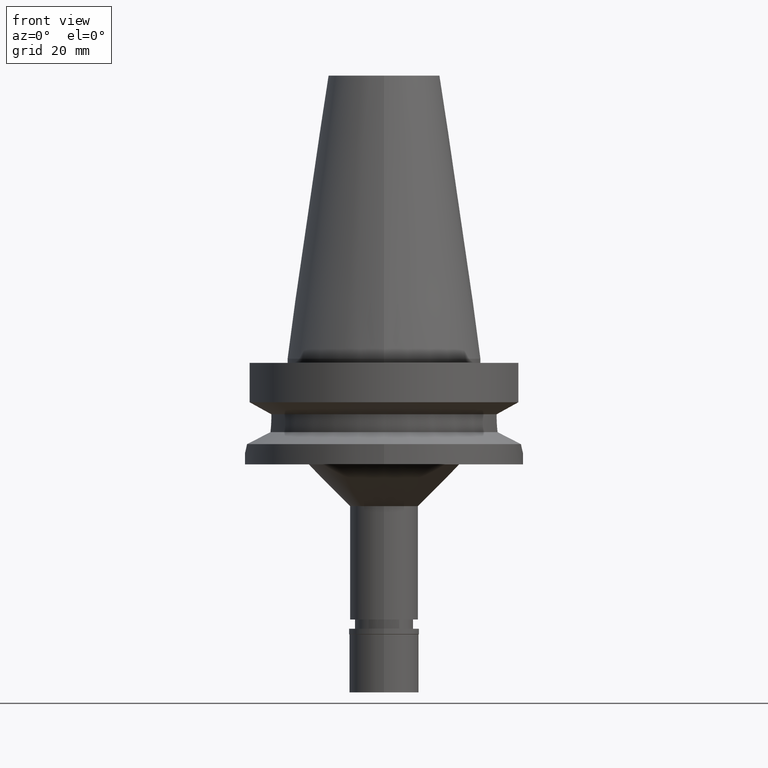
[diagram: clean part render]
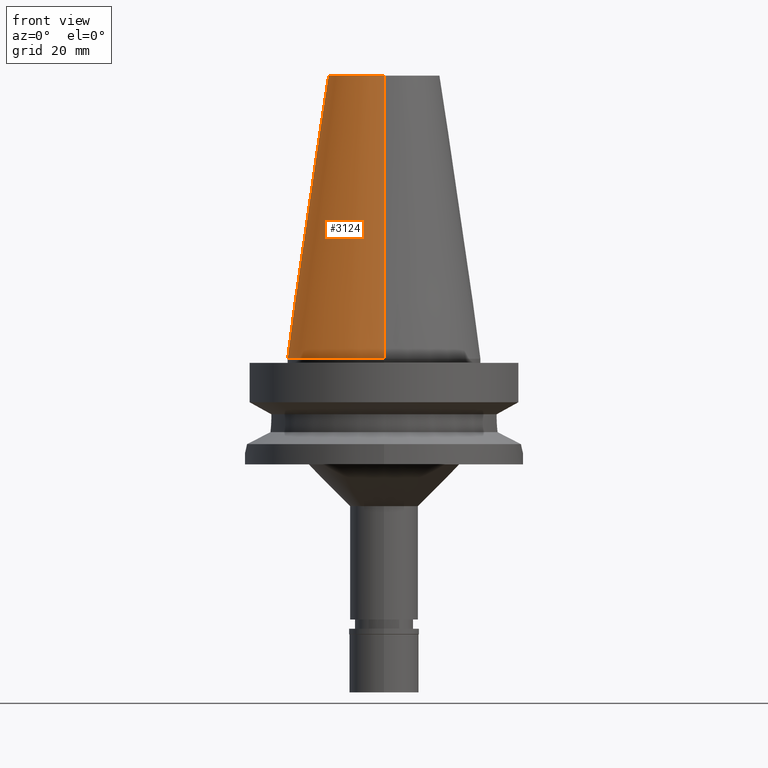
[diagram: same view with one face highlighted and labeled with its STEP entity id]
A machine part, front view. The second image highlights one B-rep face of the part: STEP entity #3124.
In plain terms, the highlighted conical surface has half-angle 8.297 deg.
Its self-contained STEP definition (entity closure, byte-faithful):
#9 = DIRECTION ( 'NONE',  ( 0.0000000000000000000, 0.0000000000000000000, -1.000000000000000000 ) ) ;
#23 = DIRECTION ( 'NONE',  ( 0.0000000000000000000, -1.000000000000000000, 0.0000000000000000000 ) ) ;
#119 = CONICAL_SURFACE ( 'NONE', #2867, 27.50221485948000222, 0.1448099680379422438 ) ;
#265 = CARTESIAN_POINT ( 'NONE',  ( 0.0000000000000000000, -34.92499999999999716, 4.476419235289000232E-13 ) ) ;
#277 = EDGE_CURVE ( 'NONE', #2784, #2004, #2087, .T. ) ;
#286 = DIRECTION ( 'NONE',  ( 0.0000000000000000000, -1.000000000000000000, 0.0000000000000000000 ) ) ;
#306 = CARTESIAN_POINT ( 'NONE',  ( 0.0000000000000000000, 1.847992019912999597E-14, 3.979039320256999774E-13 ) ) ;
#445 = DIRECTION ( 'NONE',  ( 0.0000000000000000000, 0.0000000000000000000, -1.000000000000000000 ) ) ;
#512 = DIRECTION ( 'NONE',  ( 0.0000000000000000000, -1.000000000000000000, 0.0000000000000000000 ) ) ;
#645 = CARTESIAN_POINT ( 'NONE',  ( 0.0000000000000000000, -20.07942971896000017, 101.7999999999999972 ) ) ;
#688 = VECTOR ( 'NONE', #1752, 1000.000000000000114 ) ;
#746 = CIRCLE ( 'NONE', #1349, 34.92499999999999716 ) ;
#795 = ORIENTED_EDGE ( 'NONE', *, *, #1576, .F. ) ;
#931 = EDGE_CURVE ( 'NONE', #2784, #1736, #1451, .T. ) ;
#936 = FACE_OUTER_BOUND ( 'NONE', #2428, .T. ) ;
#1246 = CARTESIAN_POINT ( 'NONE',  ( 0.0000000000000000000, 1.847992019912999597E-14, 50.89999999999999858 ) ) ;
#1303 = CARTESIAN_POINT ( 'NONE',  ( 0.0000000000000000000, 20.07942971896000017, 101.7999999999999972 ) ) ;
#1349 = AXIS2_PLACEMENT_3D ( 'NONE', #306, #445, #286 ) ;
#1410 = CARTESIAN_POINT ( 'NONE',  ( 0.0000000000000000000, 34.92499999999999716, 4.476419235289000232E-13 ) ) ;
#1451 = CIRCLE ( 'NONE', #3060, 20.07942971896000017 ) ;
#1496 = CARTESIAN_POINT ( 'NONE',  ( 0.0000000000000000000, 1.847992019912999597E-14, 101.7999999999999972 ) ) ;
#1576 = EDGE_CURVE ( 'NONE', #2004, #1877, #746, .T. ) ;
#1623 = DIRECTION ( 'NONE',  ( 0.0000000000000000000, -0.1443043893538948075, -0.9895333461855641000 ) ) ;
#1736 = VERTEX_POINT ( 'NONE', #1303 ) ;
#1752 = DIRECTION ( 'NONE',  ( 0.0000000000000000000, 0.1443043893538948075, -0.9895333461855641000 ) ) ;
#1877 = VERTEX_POINT ( 'NONE', #1410 ) ;
#2004 = VERTEX_POINT ( 'NONE', #265 ) ;
#2087 = LINE ( 'NONE', #645, #2209 ) ;
#2209 = VECTOR ( 'NONE', #1623, 1000.000000000000114 ) ;
#2428 = EDGE_LOOP ( 'NONE', ( #795, #2596, #2627, #2949 ) ) ;
#2441 = CARTESIAN_POINT ( 'NONE',  ( 0.0000000000000000000, 20.07942971896000017, 101.7999999999999972 ) ) ;
#2586 = EDGE_CURVE ( 'NONE', #1736, #1877, #3129, .T. ) ;
#2596 = ORIENTED_EDGE ( 'NONE', *, *, #277, .F. ) ;
#2627 = ORIENTED_EDGE ( 'NONE', *, *, #931, .T. ) ;
#2656 = DIRECTION ( 'NONE',  ( 0.0000000000000000000, 0.0000000000000000000, -1.000000000000000000 ) ) ;
#2784 = VERTEX_POINT ( 'NONE', #3020 ) ;
#2867 = AXIS2_PLACEMENT_3D ( 'NONE', #1246, #2656, #512 ) ;
#2949 = ORIENTED_EDGE ( 'NONE', *, *, #2586, .T. ) ;
#3020 = CARTESIAN_POINT ( 'NONE',  ( 0.0000000000000000000, -20.07942971896000017, 101.7999999999999972 ) ) ;
#3060 = AXIS2_PLACEMENT_3D ( 'NONE', #1496, #9, #23 ) ;
#3124 = ADVANCED_FACE ( 'NONE', ( #936 ), #119, .T. ) ;
#3129 = LINE ( 'NONE', #2441, #688 ) ;